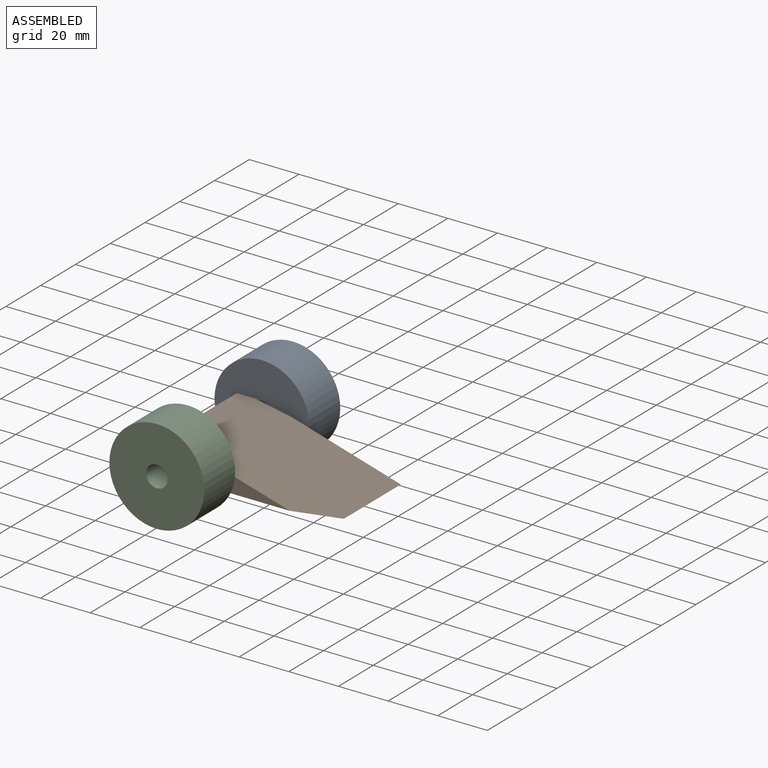
[diagram: assembled view]
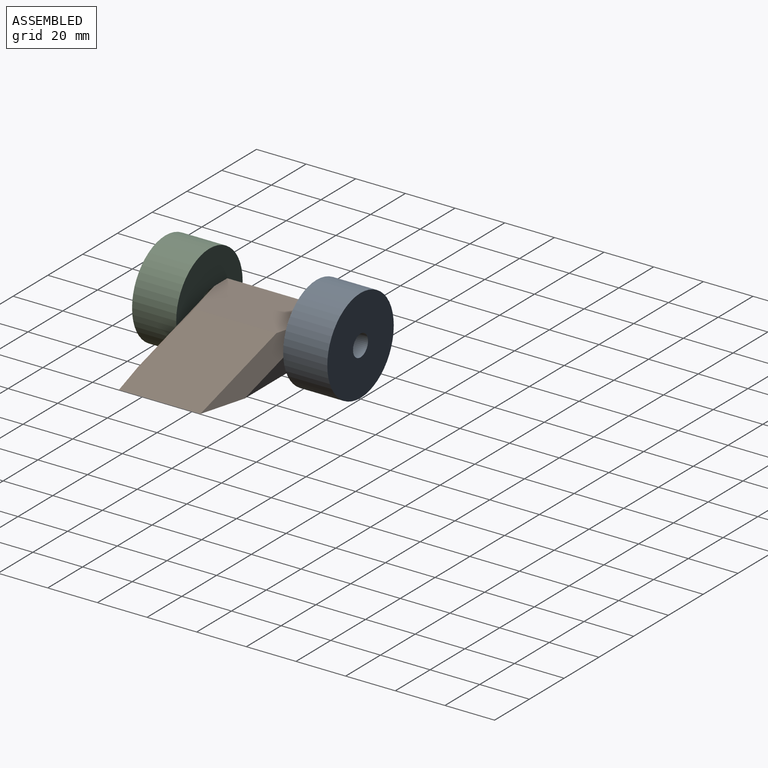
[diagram: assembled view, second angle]
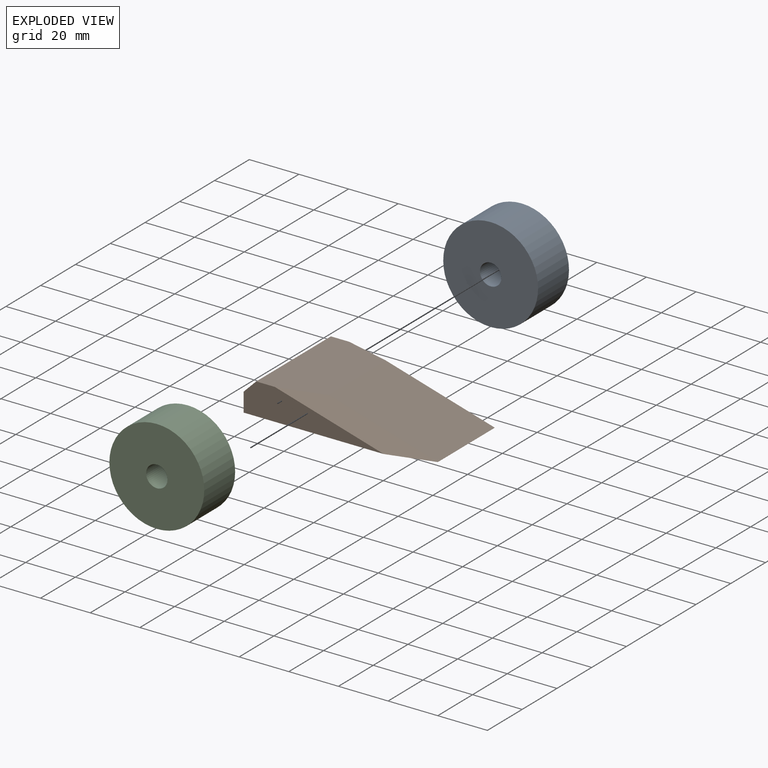
[diagram: exploded view]
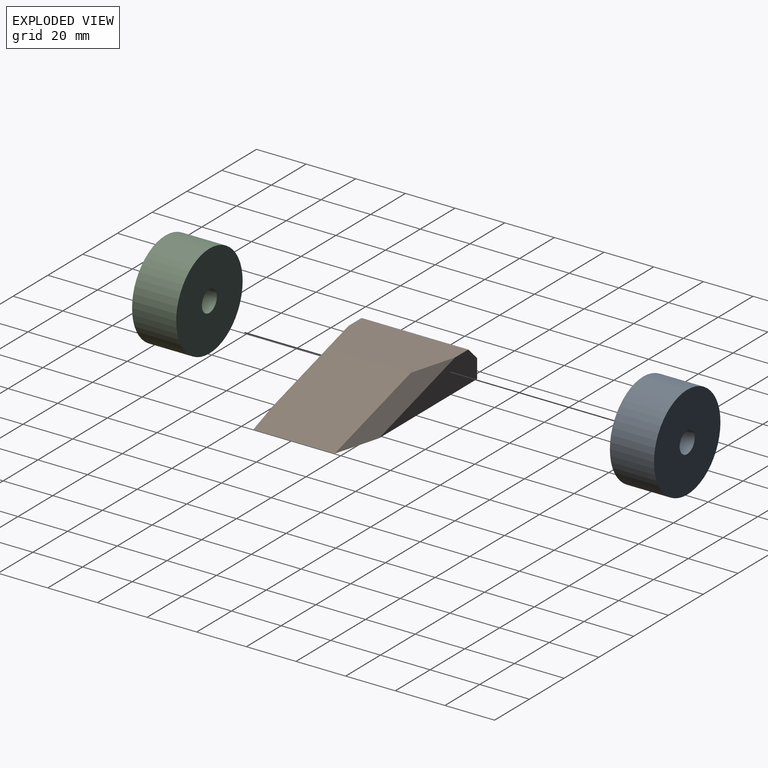
[diagram: exploded view, second angle]
ASSEMBLY  parts=3 mates=2
PART A: 4 faces, bbox 38.2x38.2x17.8 mm
  f0: cylinder r=19.11mm len=38.21mm, axis (0,0,-1), area 2134.5mm2, adj f1,f2
  f1: plane 38.21x38.21mm, normal (0,0,1), area 1088.5mm2, adj f0,f3
  f2: plane 38.21x38.21mm, normal (0,0,-1), area 1088.5mm2, adj f0,f3
  f3: cylinder r=4.31mm len=17.78mm, axis (0,0,-1), area 481.7mm2, adj f1,f2
PART B: 9 faces, bbox 74.7x43x12.7 mm
  f0: plane 56.43x12.7mm, normal (0,-1,0), area 425.3mm2, adj f2,f3,f4,f6,f8
  f1: plane 56.43x12.7mm, normal (0,1,0), area 425.3mm2, adj f2,f3,f4,f6,f7
  f2: plane 42.96x7.62mm, normal (-1,0,0), area 327.4mm2, adj f0,f1,f4,f6
  f3: plane 42.96x25.76mm, normal (0,0,1), area 1014mm2, adj f0,f1,f5,f6,f7,f8
  f4: plane 74.69x42.96mm, normal (0,0,-1), area 3116mm2, adj f0,f1,f2,f5,f7,f8
  f5: plane 43.85x32.8mm, normal (0.28,0,0.96), area 1497.4mm2, adj f3,f4,f7,f8
  f6: plane 42.96x5.08mm, normal (-0.71,0,0.71), area 308.6mm2, adj f0,f1,f2,f3
  f7: plane 62.11x12.7mm, normal (0.2,0.71,0.68), area 328mm2, adj f1,f3,f4,f5
  f8: plane 62.11x12.7mm, normal (0.2,-0.71,0.68), area 328mm2, adj f0,f3,f4,f5
PART C: same geometry as A
PLACE A rot(axis=(1,0,0),90deg) t=(-57.57,21.67,-13.66)mm
PLACE B t=(-41.9,-18.87,-21.97)mm
PLACE C rot(axis=(0.58,0.58,-0.58),120deg) t=(-57.38,-39.07,-13.65)mm
MATE parallel C.f0 <-> B.f0  axis (0,1,0) through (-57.38,-39.07,-13.65)mm
MATE planar A.f0 <-> B.f1  axis (0,-1,0) through (-57.57,3.89,-13.66)mm
